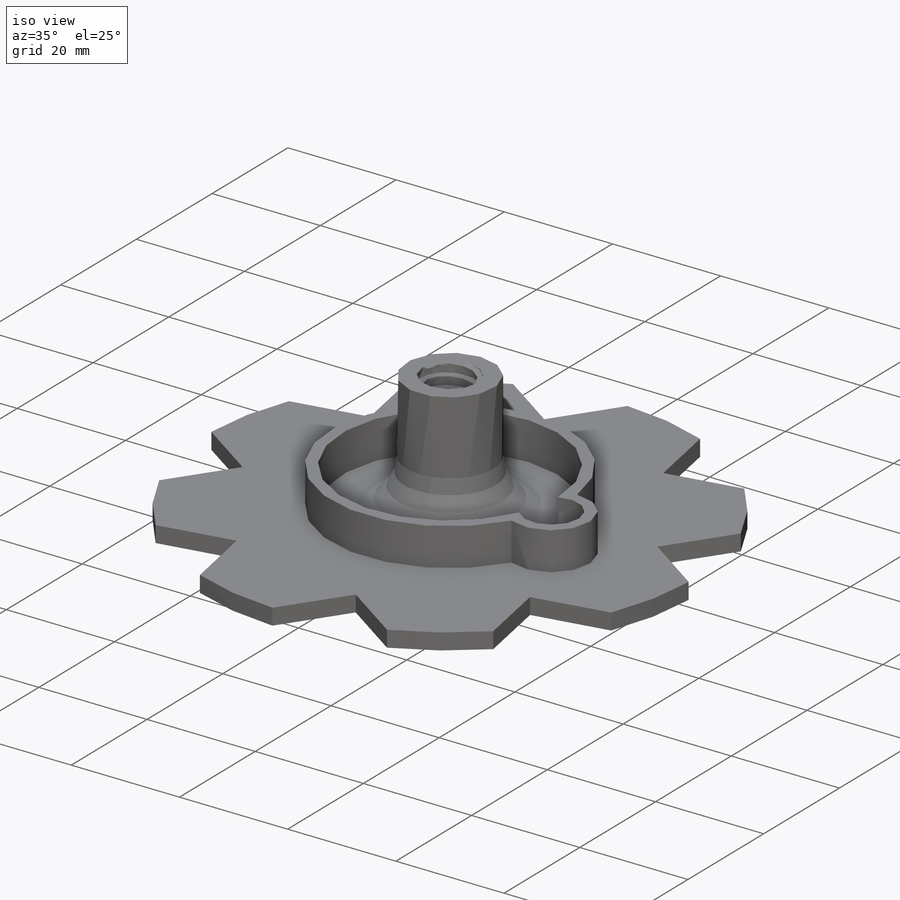
[diagram: iso view]
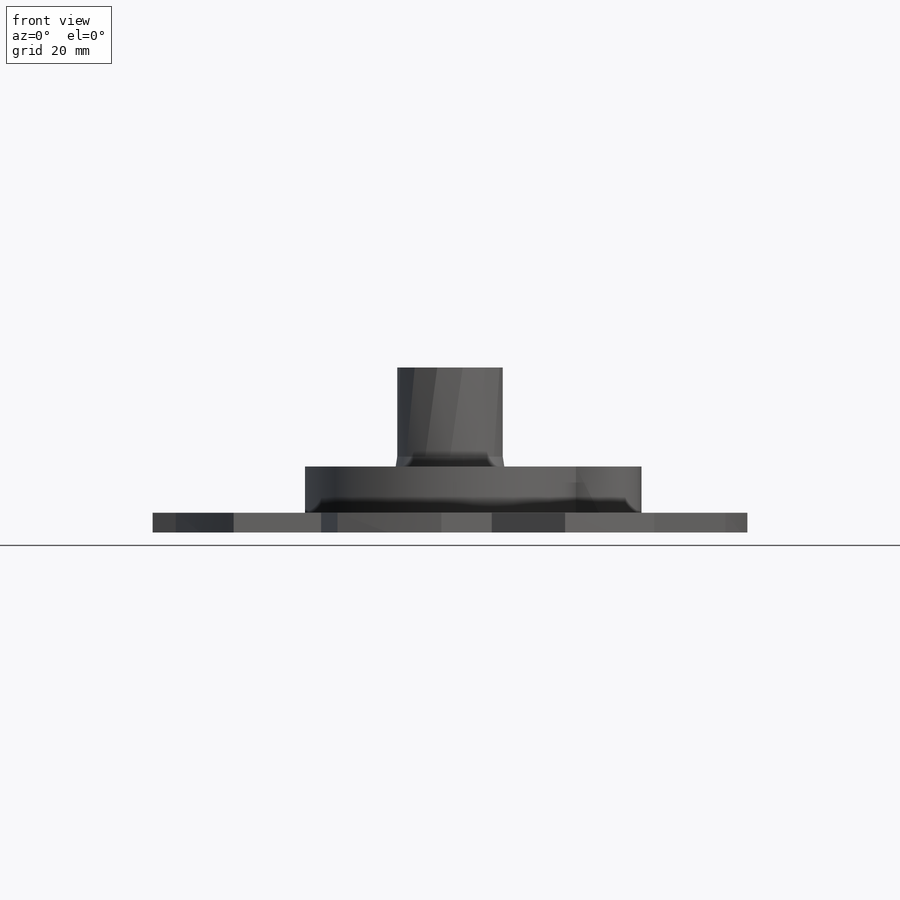
[diagram: front view]
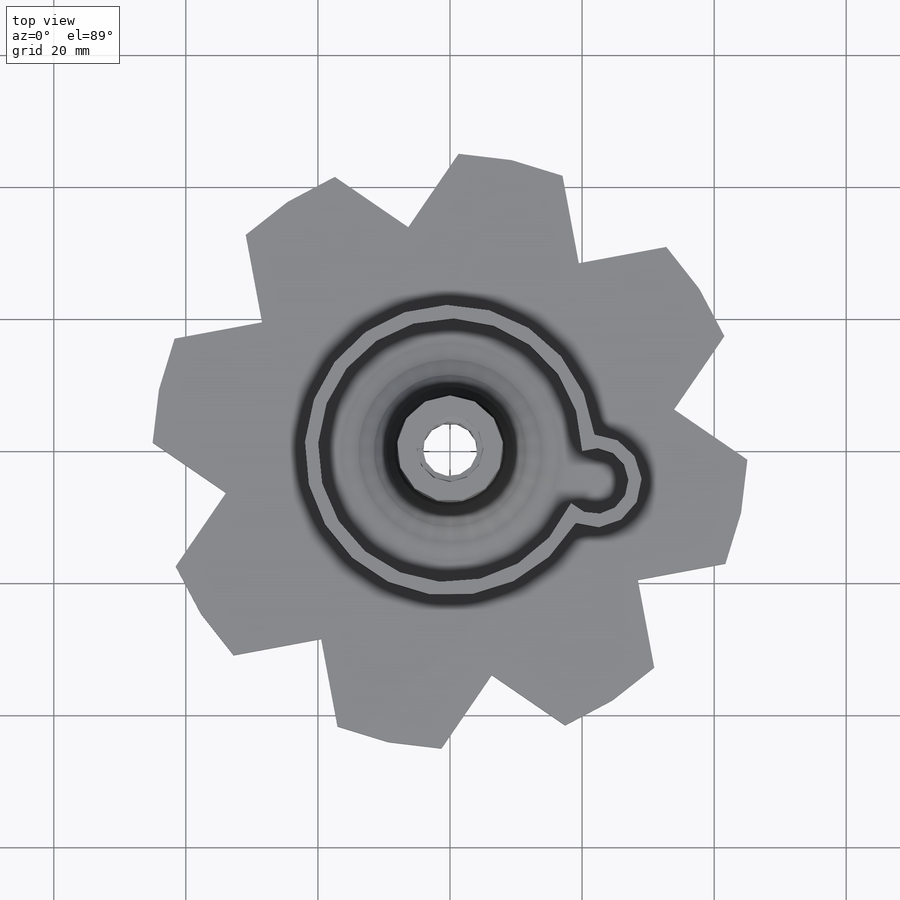
[diagram: top view]
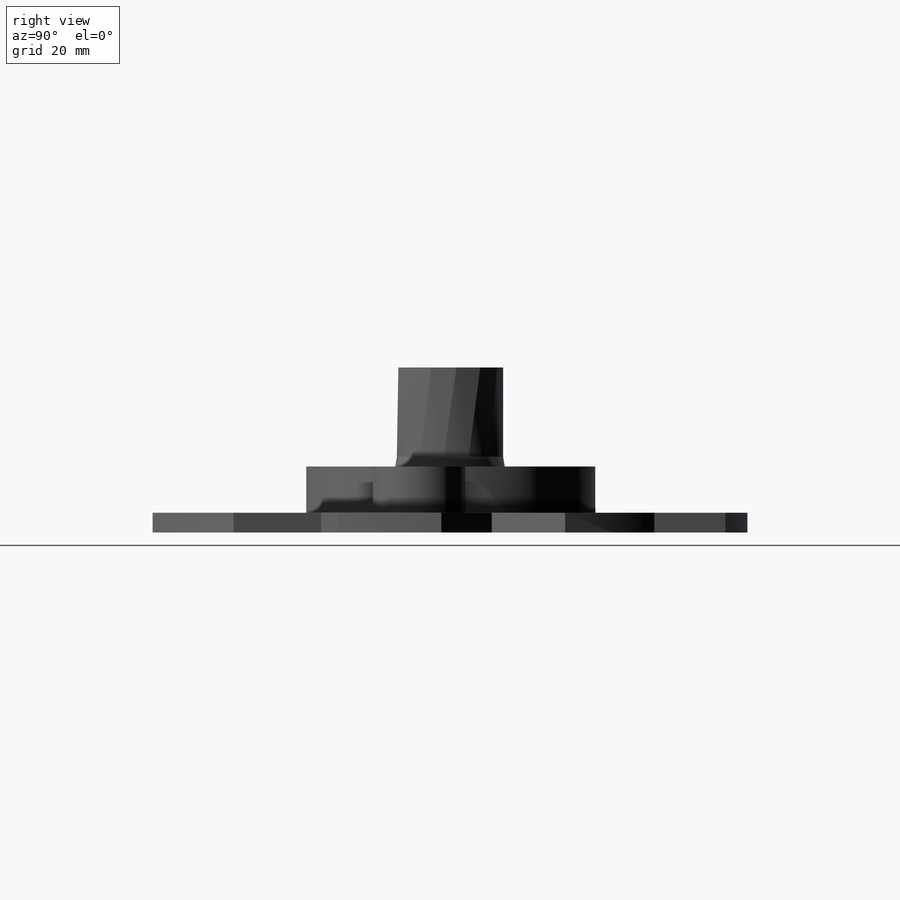
[diagram: right view]
SOLIDWORKS PART (.sldprt)
format: sldprt  version: not decoded by parser v0  size: 438,272 bytes
history: native  units: mm
features: sketch x7, cut_extrude x2, material x1, revolve x1, helix x1, plane x1, sweep x1, fillet x1, pattern_circular x1, cut_revolve x1, chamfer x1, extrude x1 (+13 scaffold rows collapsed)
feature tree (32):
  scaffold x13  (default folders/planes/origin — collapsed)
  material  "Material <not specified>"
  sketch  "Sketch1"  dims[c1.D1=2.7mm c1.D2=5.05mm c1.D3=3.0mm c1.D4=25.0mm c1.D5=22.0mm c2.D1=40.0mm c2.D5=45.05mm c3.D1=45.0mm c3.D5=3.0mm c4.D1=40.0mm]
  revolve  "Revolve1"  Angle=360deg
  sketch  "Sketch2"
  helix  "Helix/Spiral1"  Pitch=22.754167mm
  plane  "Plane1"
  sketch  "Sketch3"  dims[c1.D1=0.9mm c1.D2=0.5mm c1.D3=0.2mm c1.D4=0.058mm c2.D3=0.5mm c3.D3=119.0deg c3.D2=~1.029019mm c4.D2=119.0deg c4.D3=0.9mm c5.D2=0.9mm c6.D2=29.0deg]
  sweep  "Sweep1"
  sketch  "Sketch5"
  cut_extrude  "Cut-Extrude3"  Depth=2mm
  fillet  "Fillet1"  Radius=8.5mm
  sketch  "Sketch6"
  cut_extrude  "Cut-Extrude4"  [1 undecoded]
  pattern_circular  "CirPattern1"  Count=8 Angle=360deg
  sketch  "Sketch10"  dims[D1=2.0mm D2=0.5mm D3=8.0mm D4=4.0mm D5=~9.042421mm]
  cut_revolve  "Cut-Revolve2"  Angle=360deg
  chamfer  "Chamfer1"  Distance=0.5mm Angle=45deg
  sketch  "Sketch11"  dims[c1.D1=~39.193729mm c1.D3=7.5mm c2.D1=0.5mm c2.D3=0.5mm c2.D2=2.0mm]
  extrude  "Boss-Extrude1"  Depth=7mm
decode coverage: 12 of 17 modeling features carry decoded parameters
note: ~ marks probable driven/reference dimensions
note: 1 parameter value undecoded
note: suppression state not decoded; provenance and decode notes live in map.json
